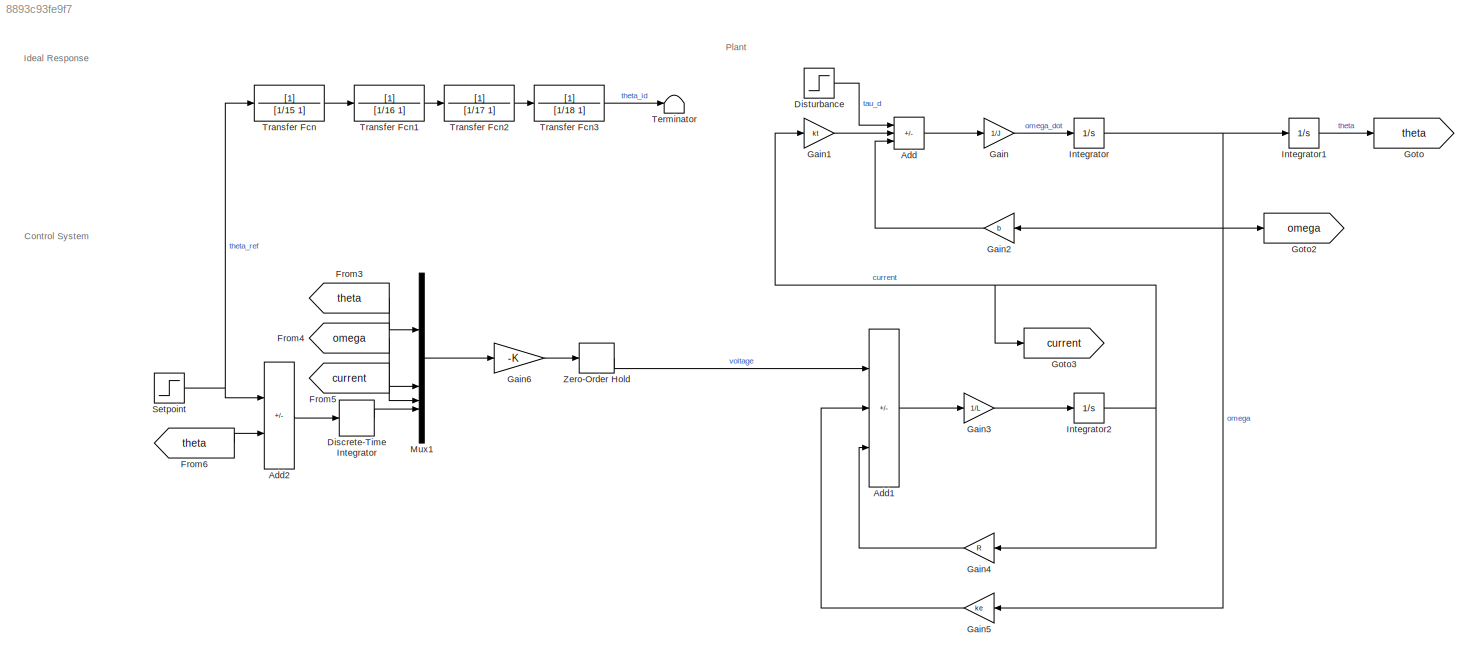
MODEL slx_8893c93fe9f7
KIND model
CONFIG AbsTol = auto
CONFIG EnableMultiTasking = off
CONFIG FixedStep = auto
CONFIG MaxStep = 0.01
CONFIG MinStep = auto
CONFIG RelTol = 1e-3
CONFIG SampleTimeConstraint = Unconstrained
CONFIG SolverName = VariableStepAuto
CONFIG StartTime = 0.0
CONFIG StopTime = 5
BLOCK [Sum] Add
  IconShape = rectangular
  Inputs = ++-
BLOCK [Sum] Add1
  IconShape = rectangular
  Inputs = +--
BLOCK [Sum] Add2
  IconShape = rectangular
  Inputs = +-
BLOCK [DiscreteIntegrator] Discrete-Time Integrator
  ICPrevOutput = DiscIntNeverNeededParam
  ICPrevScaledInput = DiscIntNeverNeededParam
  InitialConditionSetting = Auto
  SampleTime = tSamp
BLOCK [Step] Disturbance
  After = 0.1
  SampleTime = 0
  Time = 2.5
BLOCK [From] From3
  GotoTag = theta
BLOCK [From] From4
  GotoTag = omega
BLOCK [From] From5
  GotoTag = current
BLOCK [From] From6
  GotoTag = theta
BLOCK [Gain] Gain
  Gain = 1/J
BLOCK [Gain] Gain1
  Gain = kt
BLOCK [Gain] Gain2
  Gain = b
BLOCK [Gain] Gain3
  Gain = 1/L
BLOCK [Gain] Gain4
  Gain = R
BLOCK [Gain] Gain5
  Gain = ke
BLOCK [Gain] Gain6
  Gain = -K
  Multiplication = Matrix(K*u)
BLOCK [Goto] Goto
  GotoTag = theta
BLOCK [Goto] Goto2
  GotoTag = omega
BLOCK [Goto] Goto3
  GotoTag = current
BLOCK [Integrator] Integrator
BLOCK [Integrator] Integrator1
BLOCK [Integrator] Integrator2
BLOCK [Mux] Mux1
  DisplayOption = bar
BLOCK [Step] Setpoint
  After = pi
  SampleTime = 0
BLOCK [Terminator] Terminator
BLOCK [TransferFcn] Transfer Fcn
  Denominator = [1/15 1]
BLOCK [TransferFcn] Transfer Fcn1
  Denominator = [1/16 1]
BLOCK [TransferFcn] Transfer Fcn2
  Denominator = [1/17 1]
BLOCK [TransferFcn] Transfer Fcn3
  Denominator = [1/18 1]
BLOCK [ZeroOrderHold] Zero-Order Hold
  SampleTime = tSamp
ANNOTATION (root): Control System
ANNOTATION (root): Ideal Response
ANNOTATION (root): Plant
LINE Add1:1 -> Gain3:1
LINE Add2:1 -> Discrete-Time Integrator:1
LINE Add:1 -> Gain:1
LINE Discrete-Time Integrator:1 -> Mux1:4
LINE Disturbance:1 -> Add:1
LINE From3:1 -> Mux1:1
LINE From4:1 -> Mux1:2
LINE From5:1 -> Mux1:3
LINE From6:1 -> Add2:2
LINE Gain1:1 -> Add:2
LINE Gain2:1 -> Add:3
LINE Gain3:1 -> Integrator2:1
LINE Gain4:1 -> Add1:3
LINE Gain5:1 -> Add1:2
LINE Gain6:1 -> Zero-Order Hold:1
LINE Gain:1 -> Integrator:1
LINE Integrator1:1 -> Goto:1
NET Integrator2:1 -> Gain1:1, Gain4:1, Goto3:1
NET Integrator:1 -> Gain2:1, Gain5:1, Goto2:1, Integrator1:1
LINE Mux1:1 -> Gain6:1
NET Setpoint:1 -> Add2:1, Transfer Fcn:1
LINE Transfer Fcn1:1 -> Transfer Fcn2:1
LINE Transfer Fcn2:1 -> Transfer Fcn3:1
LINE Transfer Fcn3:1 -> Terminator:1
LINE Transfer Fcn:1 -> Transfer Fcn1:1
LINE Zero-Order Hold:1 -> Add1:1
note: NET lines group one-source signal fan-out (src -> all destinations, sorted); 1:1 wires keep LINE
